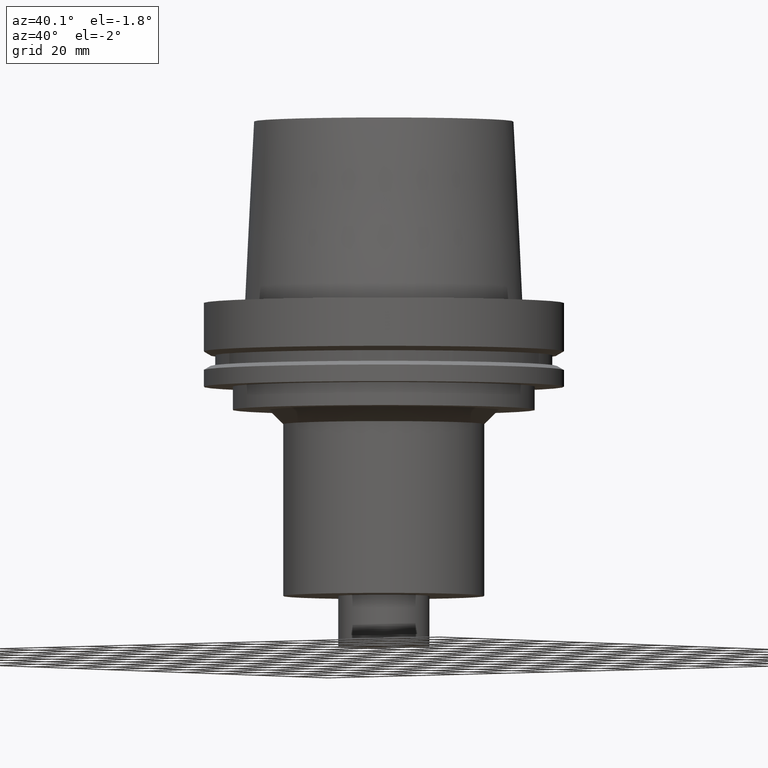
[diagram: clean part render]
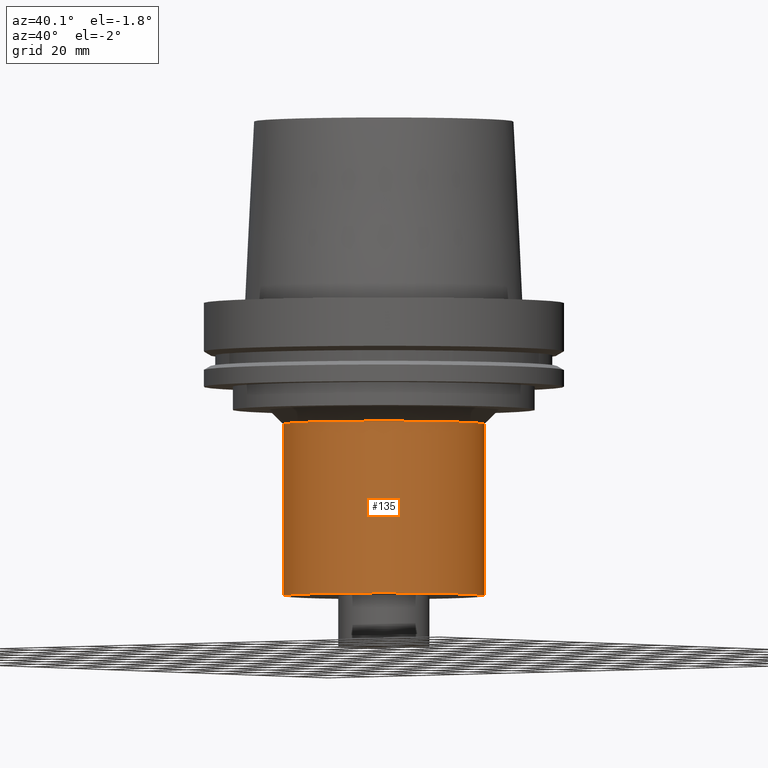
[diagram: same view with one face highlighted and labeled with its STEP entity id]
A machine part, auxiliary view. The second image highlights one B-rep face of the part: STEP entity #135.
In plain terms, the highlighted cylindrical surface (bore or boss wall) has radius 34.925 mm, axis along (0, 0, -1).
Its self-contained STEP definition (entity closure, byte-faithful):
#118=EDGE_CURVE('Unnamed[1]',#256,#256,#257,.T.);
#135=ADVANCED_FACE('Unnamed[1]',(#283,#284),#285,.T.);
#142=EDGE_CURVE('Unnamed[1]',#295,#295,#296,.T.);
#256=VERTEX_POINT('',#427);
#257=CIRCLE('',#428,34.9249999999999);
#283=FACE_BOUND('',#460,.T.);
#284=FACE_BOUND('',#461,.T.);
#285=CYLINDRICAL_SURFACE('',#462,34.9249999999999);
#295=VERTEX_POINT('',#475);
#296=CIRCLE('',#476,34.9249999999999);
#427=CARTESIAN_POINT('',(2.57175827820943E-015,34.9249999999999,-41.9999999999999));
#428=AXIS2_PLACEMENT_3D('',#590,#591,#592);
#460=EDGE_LOOP('',(#621));
#461=EDGE_LOOP('',(#622));
#462=AXIS2_PLACEMENT_3D('',#623,#624,#625);
#475=CARTESIAN_POINT('',(6.22120573966852E-015,34.9249999999999,-101.6));
#476=AXIS2_PLACEMENT_3D('',#635,#636,#637);
#590=CARTESIAN_POINT('',(2.57175827820943E-015,5.14351655641887E-015,-41.9999999999999));
#591=DIRECTION('',(6.12323399573677E-017,1.22464679914735E-016,-1.0));
#592=DIRECTION('',(-1.23259516440783E-032,1.0,1.22464679914735E-016));
#621=ORIENTED_EDGE('',*,*,#142,.F.);
#622=ORIENTED_EDGE('',*,*,#118,.T.);
#623=CARTESIAN_POINT('',(4.39648200893898E-015,8.79296401787796E-015,-71.7999999999997));
#624=DIRECTION('',(6.12323399573677E-017,1.22464679914735E-016,-1.0));
#625=DIRECTION('',(-1.23259516440783E-032,1.0,1.22464679914735E-016));
#635=CARTESIAN_POINT('',(6.22120573966852E-015,1.2442411479337E-014,-101.6));
#636=DIRECTION('',(6.12323399573677E-017,1.22464679914735E-016,-1.0));
#637=DIRECTION('',(-1.23259516440783E-032,1.0,1.22464679914735E-016));